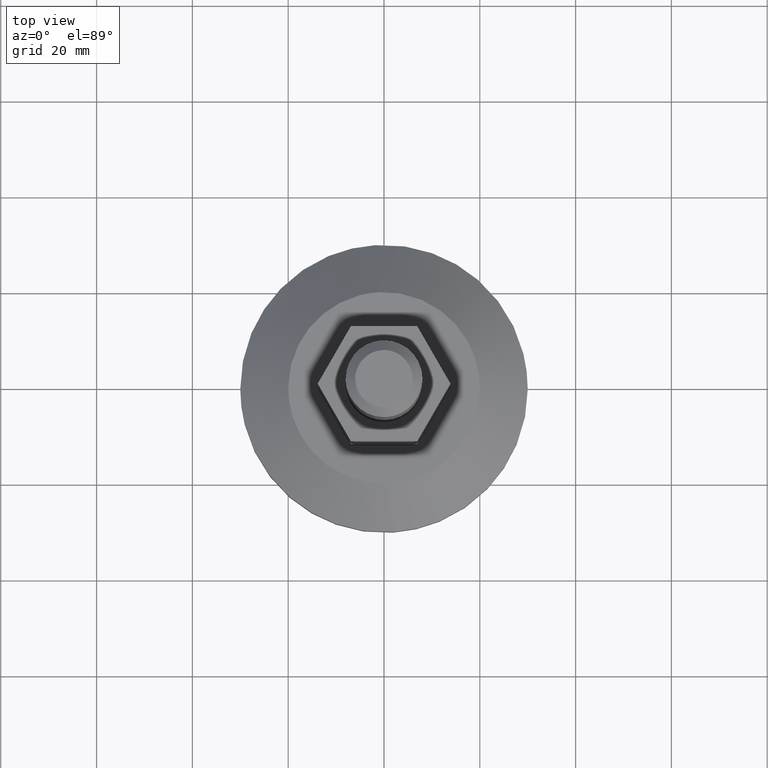
[diagram: clean part render]
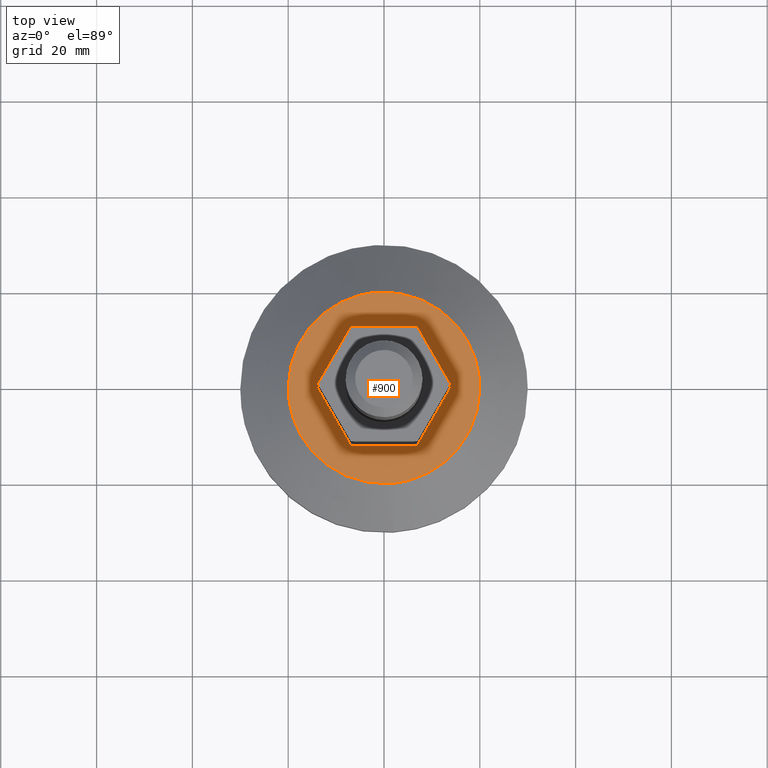
[diagram: same view with one face highlighted and labeled with its STEP entity id]
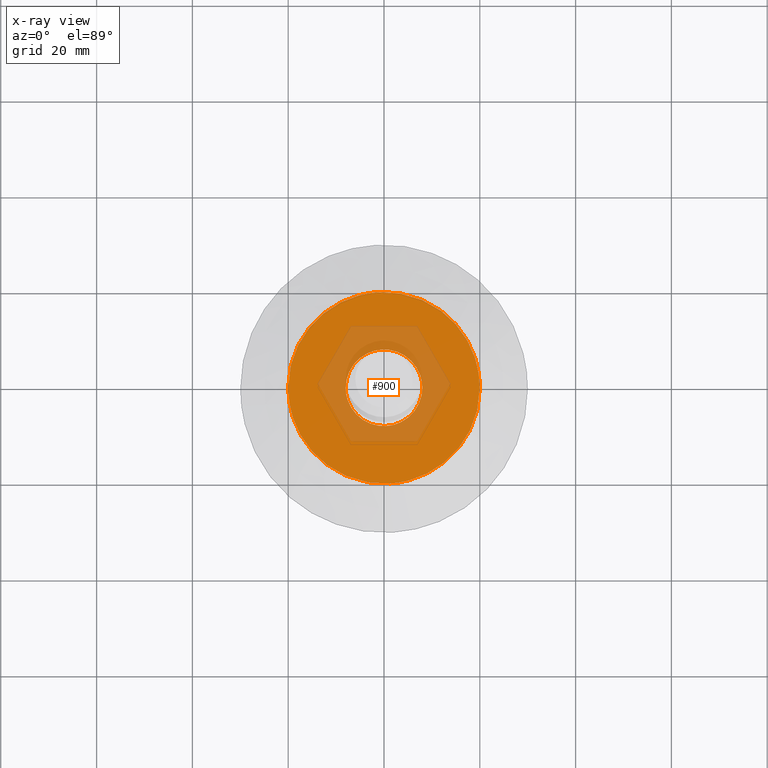
[diagram: x-ray of the same camera — body ghosted, the highlighted face saturated]
A machine part, top view. The second image highlights one B-rep face of the part: STEP entity #900.
The next image is the same camera in x-ray: the body ghosted, the highlighted face saturated — about 29% of this face is hidden behind the body in this view.
In plain terms, the highlighted face is a freeform B-spline surface patch.
Its self-contained STEP definition (entity closure, byte-faithful):
#659=CARTESIAN_POINT('',(-0.488388316454029,7.985078387364220,17.0));
#660=VERTEX_POINT('',#659);
#661=CARTESIAN_POINT('',(8.0,0.0,17.0));
#662=VERTEX_POINT('',#661);
#663=CARTESIAN_POINT('',(-0.488388316454030,7.985078387364221,17.000000000000004));
#664=CARTESIAN_POINT('',(-0.244422106476544,8.0,17.0));
#665=CARTESIAN_POINT('',(0.0,8.0,17.0));
#666=CARTESIAN_POINT('',(8.0,8.0,17.000000000000004));
#667=CARTESIAN_POINT('',(8.0,0.0,17.0));
#675=(BOUNDED_CURVE()B_SPLINE_CURVE(2,(#663,#664,#665,#666,#667),.UNSPECIFIED.,.F.,.U.)B_SPLINE_CURVE_WITH_KNOTS((3,2,3),(0.239332962238183,0.250000000000000,0.500000000000000),.UNSPECIFIED.)CURVE()GEOMETRIC_REPRESENTATION_ITEM()RATIONAL_B_SPLINE_CURVE((0.976072041665089,0.987502787898947,1.0,0.707106781186548,1.0))REPRESENTATION_ITEM(''));
#676=EDGE_CURVE('',#660,#662,#675,.T.);
#717=CARTESIAN_POINT('',(0.488388316454029,-7.985078387364220,17.0));
#718=VERTEX_POINT('',#717);
#724=CARTESIAN_POINT('',(8.0,0.0,17.0));
#725=CARTESIAN_POINT('',(8.0,-7.525648535080155,17.000000000000004));
#726=CARTESIAN_POINT('',(0.488388316454030,-7.985078387364221,17.000000000000004));
#734=(BOUNDED_CURVE()B_SPLINE_CURVE(2,(#724,#725,#726),.UNSPECIFIED.,.F.,.U.)B_SPLINE_CURVE_WITH_KNOTS((3,3),(0.500000000000000,0.739332962238183),.UNSPECIFIED.)CURVE()GEOMETRIC_REPRESENTATION_ITEM()RATIONAL_B_SPLINE_CURVE((1.0,0.719603993287601,0.976072041665089))REPRESENTATION_ITEM(''));
#735=EDGE_CURVE('',#662,#718,#734,.T.);
#758=CARTESIAN_POINT('',(-8.0,0.0,17.0));
#759=VERTEX_POINT('',#758);
#760=CARTESIAN_POINT('',(-8.0,0.0,17.0));
#761=CARTESIAN_POINT('',(-8.0,7.525648535080157,17.000000000000007));
#762=CARTESIAN_POINT('',(-0.488388316454029,7.985078387364222,17.000000000000004));
#770=(BOUNDED_CURVE()B_SPLINE_CURVE(2,(#760,#761,#762),.UNSPECIFIED.,.F.,.U.)B_SPLINE_CURVE_WITH_KNOTS((3,3),(0.0,0.239332962238183),.UNSPECIFIED.)CURVE()GEOMETRIC_REPRESENTATION_ITEM()RATIONAL_B_SPLINE_CURVE((1.0,0.719603993287600,0.976072041665089))REPRESENTATION_ITEM(''));
#771=EDGE_CURVE('',#759,#660,#770,.T.);
#773=CARTESIAN_POINT('',(0.488388316454030,-7.985078387364221,17.000000000000004));
#774=CARTESIAN_POINT('',(0.244422106476544,-8.0,17.0));
#775=CARTESIAN_POINT('',(0.0,-8.0,17.0));
#776=CARTESIAN_POINT('',(-8.0,-8.0,17.000000000000004));
#777=CARTESIAN_POINT('',(-8.0,0.0,17.0));
#785=(BOUNDED_CURVE()B_SPLINE_CURVE(2,(#773,#774,#775,#776,#777),.UNSPECIFIED.,.F.,.U.)B_SPLINE_CURVE_WITH_KNOTS((3,2,3),(0.739332962238183,0.750000000000000,1.0),.UNSPECIFIED.)CURVE()GEOMETRIC_REPRESENTATION_ITEM()RATIONAL_B_SPLINE_CURVE((0.976072041665089,0.987502787898947,1.0,0.707106781186548,1.0))REPRESENTATION_ITEM(''));
#786=EDGE_CURVE('',#718,#759,#785,.T.);
#823=CARTESIAN_POINT('',(21.997999922472239,-21.997507746183810,17.0));
#824=CARTESIAN_POINT('',(-21.998000995355849,-21.997507746183810,17.0));
#825=CARTESIAN_POINT('',(21.997999922472239,21.997507030928070,17.0));
#826=CARTESIAN_POINT('',(-21.998000995355849,21.997507030928070,17.0));
#827=B_SPLINE_SURFACE_WITH_KNOTS('',1,1,((#823,#825),(#824,#826)),.UNSPECIFIED.,.F.,.F.,.U.,(2,2),(2,2),(0.0,43.996000917828077),(0.0,43.995014777111876),.UNSPECIFIED.);
#828=CARTESIAN_POINT('',(1.220970790805419,-19.962695968445718,16.999999999987441));
#829=VERTEX_POINT('',#828);
#830=CARTESIAN_POINT('',(-20.0,0.0,17.0));
#831=VERTEX_POINT('',#830);
#832=CARTESIAN_POINT('',(1.220970790805420,-19.962695968445718,16.999999999987441));
#833=CARTESIAN_POINT('',(0.611055266026513,-20.000000000014722,16.999999999987615));
#834=CARTESIAN_POINT('',(8.872711E-013,-20.000000000014499,16.999999999987811));
#835=CARTESIAN_POINT('',(-19.999999999999574,-20.000000000007027,16.999999999994088));
#836=CARTESIAN_POINT('',(-20.0,0.0,17.0));
#844=(BOUNDED_CURVE()B_SPLINE_CURVE(2,(#832,#833,#834,#835,#836),.UNSPECIFIED.,.F.,.U.)B_SPLINE_CURVE_WITH_KNOTS((3,2,3),(0.739332962241040,0.750000000000000,1.0),.UNSPECIFIED.)CURVE()GEOMETRIC_REPRESENTATION_ITEM()RATIONAL_B_SPLINE_CURVE((0.976072041671213,0.987502787902295,1.0,0.707106781186548,1.0))REPRESENTATION_ITEM(''));
#845=EDGE_CURVE('',#829,#831,#844,.T.);
#846=ORIENTED_EDGE('',*,*,#845,.F.);
#847=CARTESIAN_POINT('',(20.0,0.0,17.0));
#848=VERTEX_POINT('',#847);
#849=CARTESIAN_POINT('',(20.0,0.0,17.0));
#850=CARTESIAN_POINT('',(20.000000000000462,-18.814121338019994,16.999999999993719));
#851=CARTESIAN_POINT('',(1.220970790805420,-19.962695968445718,16.999999999987441));
#859=(BOUNDED_CURVE()B_SPLINE_CURVE(2,(#849,#850,#851),.UNSPECIFIED.,.F.,.U.)B_SPLINE_CURVE_WITH_KNOTS((3,3),(0.500000000000000,0.739332962241040),.UNSPECIFIED.)CURVE()GEOMETRIC_REPRESENTATION_ITEM()RATIONAL_B_SPLINE_CURVE((1.0,0.719603993284253,0.976072041671213))REPRESENTATION_ITEM(''));
#860=EDGE_CURVE('',#848,#829,#859,.T.);
#861=ORIENTED_EDGE('',*,*,#860,.F.);
#862=CARTESIAN_POINT('',(-1.220970790805426,19.962695968445711,16.999999999987441));
#863=VERTEX_POINT('',#862);
#864=CARTESIAN_POINT('',(-1.220970790805426,19.962695968445711,16.999999999987441));
#865=CARTESIAN_POINT('',(-0.611055266026516,20.000000000014722,16.999999999987619));
#866=CARTESIAN_POINT('',(-8.877020E-013,20.000000000014492,16.999999999987811));
#867=CARTESIAN_POINT('',(19.999999999999574,20.000000000007027,16.999999999994088));
#868=CARTESIAN_POINT('',(20.0,0.0,17.0));
#876=(BOUNDED_CURVE()B_SPLINE_CURVE(2,(#864,#865,#866,#867,#868),.UNSPECIFIED.,.F.,.U.)B_SPLINE_CURVE_WITH_KNOTS((3,2,3),(0.239332962241040,0.250000000000000,0.500000000000000),.UNSPECIFIED.)CURVE()GEOMETRIC_REPRESENTATION_ITEM()RATIONAL_B_SPLINE_CURVE((0.976072041671213,0.987502787902295,1.0,0.707106781186548,1.0))REPRESENTATION_ITEM(''));
#877=EDGE_CURVE('',#863,#848,#876,.T.);
#878=ORIENTED_EDGE('',*,*,#877,.F.);
#879=CARTESIAN_POINT('',(-20.0,0.0,17.0));
#880=CARTESIAN_POINT('',(-20.000000000000458,18.814121338019977,16.999999999993715));
#881=CARTESIAN_POINT('',(-1.220970790805426,19.962695968445711,16.999999999987441));
#889=(BOUNDED_CURVE()B_SPLINE_CURVE(2,(#879,#880,#881),.UNSPECIFIED.,.F.,.U.)B_SPLINE_CURVE_WITH_KNOTS((3,3),(0.0,0.239332962241040),.UNSPECIFIED.)CURVE()GEOMETRIC_REPRESENTATION_ITEM()RATIONAL_B_SPLINE_CURVE((1.0,0.719603993284253,0.976072041671213))REPRESENTATION_ITEM(''));
#890=EDGE_CURVE('',#831,#863,#889,.T.);
#891=ORIENTED_EDGE('',*,*,#890,.F.);
#892=EDGE_LOOP('',(#846,#861,#878,#891));
#893=FACE_OUTER_BOUND('',#892,.T.);
#894=ORIENTED_EDGE('',*,*,#735,.T.);
#895=ORIENTED_EDGE('',*,*,#786,.T.);
#896=ORIENTED_EDGE('',*,*,#771,.T.);
#897=ORIENTED_EDGE('',*,*,#676,.T.);
#898=EDGE_LOOP('',(#894,#895,#896,#897));
#899=FACE_BOUND('',#898,.T.);
#900=ADVANCED_FACE('',(#893,#899),#827,.F.);